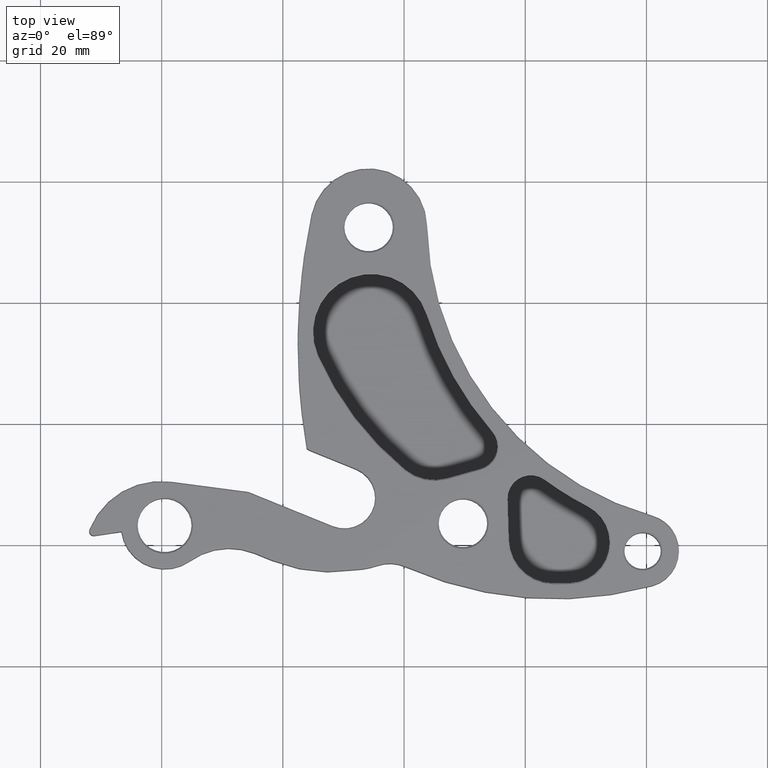
[diagram: clean part render]
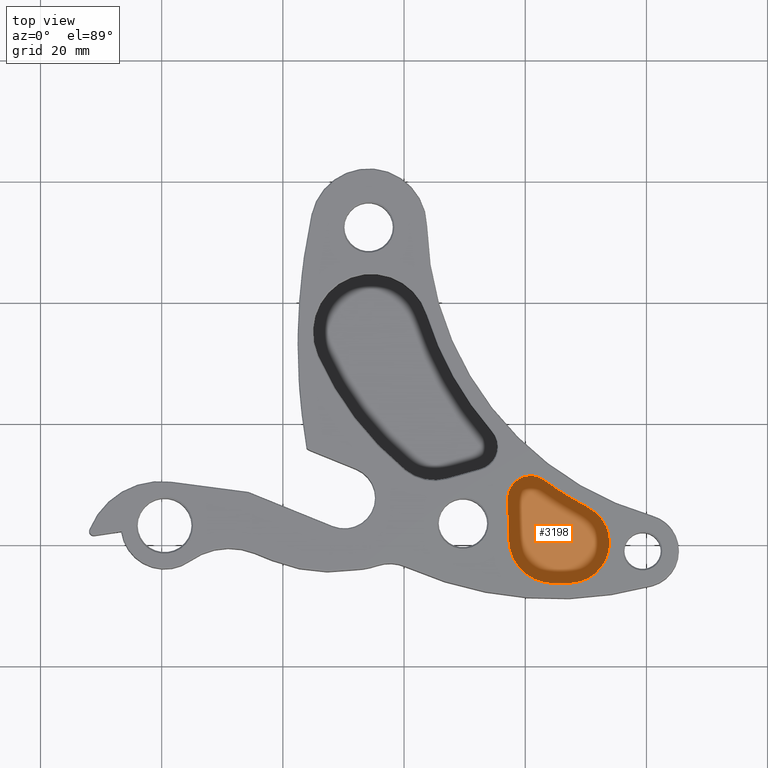
[diagram: same view with one face highlighted and labeled with its STEP entity id]
A machine part, top view. The second image highlights one B-rep face of the part: STEP entity #3198.
In plain terms, the highlighted planar face has unit normal (0, 0, 1).
Its self-contained STEP definition (entity closure, byte-faithful):
#104 = DIRECTION ( 'NONE',  ( 0.0000000000000000000, 0.0000000000000000000, 1.000000000000000000 ) ) ;
#145 = CARTESIAN_POINT ( 'NONE',  ( 5.807522321646305663, -7.335736338836414738, 0.1349999999999999811 ) ) ;
#154 = CARTESIAN_POINT ( 'NONE',  ( 5.916525142971987172, -6.839343158376571807, 0.1349999999999999811 ) ) ;
#228 = CARTESIAN_POINT ( 'NONE',  ( 5.694935761425998777, -7.048399385013000895, 0.1349999999999999811 ) ) ;
#232 = DIRECTION ( 'NONE',  ( 0.0000000000000000000, 0.0000000000000000000, 1.000000000000000000 ) ) ;
#299 = ORIENTED_EDGE ( 'NONE', *, *, #2836, .T. ) ;
#306 = EDGE_CURVE ( 'NONE', #386, #1189, #655, .T. ) ;
#386 = VERTEX_POINT ( 'NONE', #145 ) ;
#467 = CARTESIAN_POINT ( 'NONE',  ( 6.884638078333982669, -4.963106718682009699, 0.1349999999999999811 ) ) ;
#553 = CARTESIAN_POINT ( 'NONE',  ( 5.405556857216981648, -7.057393734672332997, 0.1349999999999999811 ) ) ;
#558 = DIRECTION ( 'NONE',  ( 0.0000000000000000000, 0.0000000000000000000, 1.000000000000000000 ) ) ;
#597 = EDGE_CURVE ( 'NONE', #3100, #753, #1238, .T. ) ;
#628 = CIRCLE ( 'NONE', #1927, 0.2629615186703067042 ) ;
#645 = DIRECTION ( 'NONE',  ( 0.0000000000000000000, 0.0000000000000000000, 1.000000000000000000 ) ) ;
#655 = CIRCLE ( 'NONE', #1902, 0.2629615186703067042 ) ;
#753 = VERTEX_POINT ( 'NONE', #1892 ) ;
#792 = CARTESIAN_POINT ( 'NONE',  ( 5.547208723066001212, -6.786475232526000489, 0.1349999999999999811 ) ) ;
#874 = ORIENTED_EDGE ( 'NONE', *, *, #306, .T. ) ;
#885 = ORIENTED_EDGE ( 'NONE', *, *, #2472, .T. ) ;
#1021 = VECTOR ( 'NONE', #2453, 39.37007874015748854 ) ;
#1073 = DIRECTION ( 'NONE',  ( 1.000000000000000000, 0.0000000000000000000, 0.0000000000000000000 ) ) ;
#1076 = AXIS2_PLACEMENT_3D ( 'NONE', #792, #1919, #1073 ) ;
#1102 = EDGE_LOOP ( 'NONE', ( #299, #3372, #3316, #1839, #2232, #874, #885 ) ) ;
#1159 = CARTESIAN_POINT ( 'NONE',  ( 6.884638078333982669, -4.963106718682009699, 0.1349999999999999811 ) ) ;
#1189 = VERTEX_POINT ( 'NONE', #2737 ) ;
#1238 = CIRCLE ( 'NONE', #3482, 0.2895186497049991314 ) ;
#1321 = AXIS2_PLACEMENT_3D ( 'NONE', #1837, #232, #2114 ) ;
#1352 = VERTEX_POINT ( 'NONE', #2131 ) ;
#1372 = DIRECTION ( 'NONE',  ( 1.000000000000000000, 0.0000000000000000000, -0.0000000000000000000 ) ) ;
#1432 = DIRECTION ( 'NONE',  ( 1.000000000000000000, 0.0000000000000000000, 0.0000000000000000000 ) ) ;
#1483 = EDGE_CURVE ( 'NONE', #1352, #3439, #3484, .T. ) ;
#1532 = PLANE ( 'NONE',  #2399 ) ;
#1696 = DIRECTION ( 'NONE',  ( 1.000000000000000000, 0.0000000000000000000, 0.0000000000000000000 ) ) ;
#1708 = CIRCLE ( 'NONE', #1321, 2.286983302157437059 ) ;
#1730 = LINE ( 'NONE', #553, #1021 ) ;
#1796 = FACE_OUTER_BOUND ( 'NONE', #1102, .T. ) ;
#1835 = EDGE_CURVE ( 'NONE', #3439, #3100, #1730, .T. ) ;
#1837 = CARTESIAN_POINT ( 'NONE',  ( 5.706842577794041027, -5.050970220931832344, 0.1349999999999999811 ) ) ;
#1839 = ORIENTED_EDGE ( 'NONE', *, *, #597, .T. ) ;
#1892 = CARTESIAN_POINT ( 'NONE',  ( 5.693209950962812904, -7.337912890924643605, 0.1349999999999999811 ) ) ;
#1902 = AXIS2_PLACEMENT_3D ( 'NONE', #1976, #104, #1696 ) ;
#1919 = DIRECTION ( 'NONE',  ( 0.0000000000000000000, 0.0000000000000000000, 1.000000000000000000 ) ) ;
#1927 = AXIS2_PLACEMENT_3D ( 'NONE', #2172, #558, #2456 ) ;
#1976 = CARTESIAN_POINT ( 'NONE',  ( 5.795945980744000359, -7.073029756061999684, 0.1349999999999999811 ) ) ;
#2058 = DIRECTION ( 'NONE',  ( 0.0000000000000000000, 0.0000000000000000000, 1.000000000000000000 ) ) ;
#2114 = DIRECTION ( 'NONE',  ( 1.000000000000000000, 0.0000000000000000000, 0.0000000000000000000 ) ) ;
#2131 = CARTESIAN_POINT ( 'NONE',  ( 5.635925887136928658, -6.665523734811952039, 0.1349999999999999811 ) ) ;
#2155 = VERTEX_POINT ( 'NONE', #154 ) ;
#2172 = CARTESIAN_POINT ( 'NONE',  ( 5.795945980744000359, -7.073029756061999684, 0.1349999999999999811 ) ) ;
#2232 = ORIENTED_EDGE ( 'NONE', *, *, #2596, .T. ) ;
#2387 = DIRECTION ( 'NONE',  ( 1.000000000000000000, 0.0000000000000000000, 0.0000000000000000000 ) ) ;
#2399 = AXIS2_PLACEMENT_3D ( 'NONE', #467, #645, #1372 ) ;
#2453 = DIRECTION ( 'NONE',  ( 0.03106656399307439545, -0.9995173178097838118, -0.0000000000000000000 ) ) ;
#2456 = DIRECTION ( 'NONE',  ( 1.000000000000000000, 0.0000000000000000000, 0.0000000000000000000 ) ) ;
#2472 = EDGE_CURVE ( 'NONE', #1189, #2155, #628, .T. ) ;
#2535 = AXIS2_PLACEMENT_3D ( 'NONE', #1159, #3061, #1432 ) ;
#2574 = CARTESIAN_POINT ( 'NONE',  ( 5.405556857216981648, -7.057393734672332997, 0.1349999999999999811 ) ) ;
#2596 = EDGE_CURVE ( 'NONE', #753, #386, #1708, .T. ) ;
#2737 = CARTESIAN_POINT ( 'NONE',  ( 6.058907499414306841, -7.073029756061999684, 0.1349999999999999811 ) ) ;
#2748 = CIRCLE ( 'NONE', #2535, 2.111280614521236387 ) ;
#2836 = EDGE_CURVE ( 'NONE', #2155, #1352, #2748, .T. ) ;
#3061 = DIRECTION ( 'NONE',  ( -0.0000000000000000000, -0.0000000000000000000, -1.000000000000000000 ) ) ;
#3100 = VERTEX_POINT ( 'NONE', #2574 ) ;
#3198 = ADVANCED_FACE ( 'NONE', ( #1796 ), #1532, .T. ) ;
#3316 = ORIENTED_EDGE ( 'NONE', *, *, #1835, .T. ) ;
#3372 = ORIENTED_EDGE ( 'NONE', *, *, #1483, .T. ) ;
#3377 = CARTESIAN_POINT ( 'NONE',  ( 5.397281125394354007, -6.791135217125528811, 0.1349999999999999811 ) ) ;
#3439 = VERTEX_POINT ( 'NONE', #3377 ) ;
#3482 = AXIS2_PLACEMENT_3D ( 'NONE', #228, #2058, #2387 ) ;
#3484 = CIRCLE ( 'NONE', #1076, 0.1500000000001970035 ) ;